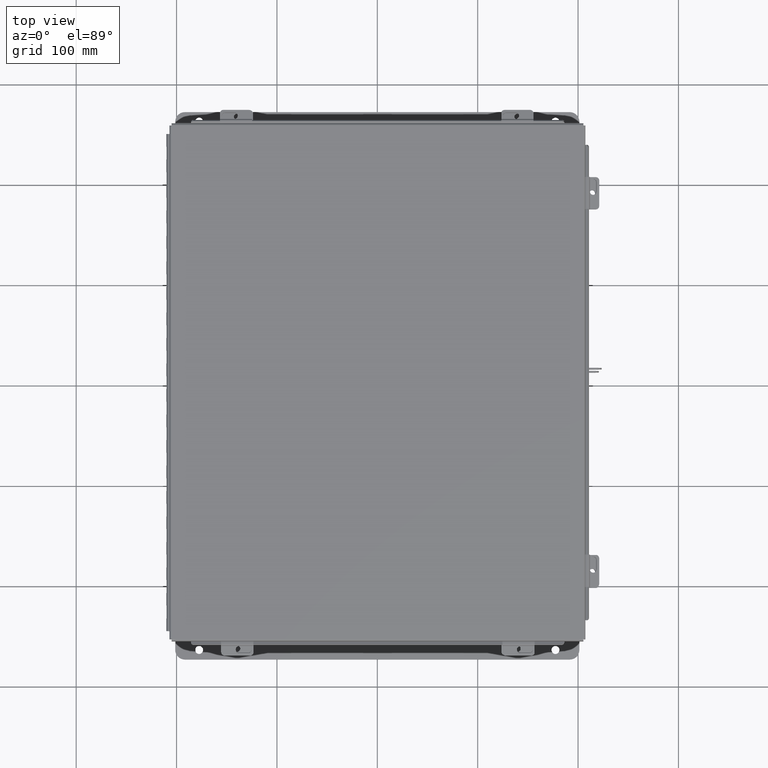
[diagram: clean part render]
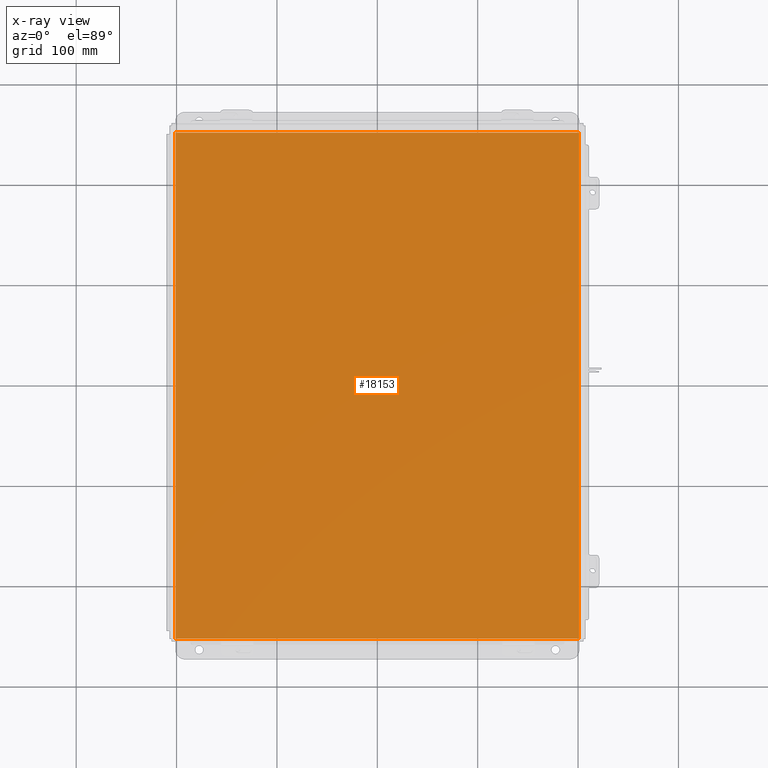
[diagram: x-ray — body ghosted, one internal face saturated and labeled with its STEP entity id]
A machine part, top view, then the same camera in x-ray: the body is ghosted and one INTERNAL B-rep face — a face not visible from any outside direction — is saturated and labeled: STEP entity #18153.
In plain terms, the highlighted planar face has unit normal (0, 0, -1).
Its self-contained STEP definition (entity closure, byte-faithful):
#247 = VERTEX_POINT ( 'NONE', #14340 ) ;
#1112 = VERTEX_POINT ( 'NONE', #9008 ) ;
#1941 = CARTESIAN_POINT ( 'NONE',  ( -7.999999999999996400, -9.925299999999998200, 0.0000000000000000000 ) ) ;
#2036 = CARTESIAN_POINT ( 'NONE',  ( -7.999999999999996400, 9.925299999999998200, 0.0000000000000000000 ) ) ;
#2322 = VECTOR ( 'NONE', #21362, 39.37007874015748100 ) ;
#2579 = DIRECTION ( 'NONE',  ( -1.000000000000000000, 0.0000000000000000000, -0.0000000000000000000 ) ) ;
#4944 = FACE_OUTER_BOUND ( 'NONE', #6445, .T. ) ;
#5704 = CARTESIAN_POINT ( 'NONE',  ( 7.912300000000002800, 9.925299999999996500, 4.268512490100411300E-017 ) ) ;
#5998 = VECTOR ( 'NONE', #13963, 39.37007874015748100 ) ;
#6445 = EDGE_LOOP ( 'NONE', ( #9584, #6612, #9153, #16249 ) ) ;
#6612 = ORIENTED_EDGE ( 'NONE', *, *, #7740, .T. ) ;
#7730 = CARTESIAN_POINT ( 'NONE',  ( -7.912299999999996600, -9.925299999999998200, 4.268512490100411300E-017 ) ) ;
#7740 = EDGE_CURVE ( 'NONE', #10374, #1112, #20404, .T. ) ;
#7871 = DIRECTION ( 'NONE',  ( -0.0000000000000000000, 1.000000000000000000, -0.0000000000000000000 ) ) ;
#7913 = CARTESIAN_POINT ( 'NONE',  ( 7.912300000000002800, -9.925300000000000000, 4.268512490100411300E-017 ) ) ;
#9008 = CARTESIAN_POINT ( 'NONE',  ( -7.912299999999996600, 9.925299999999998200, 4.268512490100411300E-017 ) ) ;
#9153 = ORIENTED_EDGE ( 'NONE', *, *, #13469, .F. ) ;
#9584 = ORIENTED_EDGE ( 'NONE', *, *, #17611, .F. ) ;
#9688 = CARTESIAN_POINT ( 'NONE',  ( 7.912300000000002800, 9.925299999999992900, 4.268512490100411300E-017 ) ) ;
#10374 = VERTEX_POINT ( 'NONE', #9688 ) ;
#11416 = LINE ( 'NONE', #5704, #2322 ) ;
#11533 = LINE ( 'NONE', #7730, #20255 ) ;
#12835 = DIRECTION ( 'NONE',  ( 0.0000000000000000000, 0.0000000000000000000, -1.000000000000000000 ) ) ;
#13469 = EDGE_CURVE ( 'NONE', #247, #1112, #11533, .T. ) ;
#13877 = DIRECTION ( 'NONE',  ( -1.000000000000000000, -0.0000000000000000000, -0.0000000000000000000 ) ) ;
#13963 = DIRECTION ( 'NONE',  ( 1.000000000000000000, -1.365923996832131600E-016, 0.0000000000000000000 ) ) ;
#14340 = CARTESIAN_POINT ( 'NONE',  ( -7.912299999999996600, -9.925299999999996500, 4.268512490100411300E-017 ) ) ;
#16249 = ORIENTED_EDGE ( 'NONE', *, *, #17492, .T. ) ;
#16259 = CARTESIAN_POINT ( 'NONE',  ( 0.0000000000000000000, 0.0000000000000000000, 0.0000000000000000000 ) ) ;
#16833 = VECTOR ( 'NONE', #13877, 39.37007874015748100 ) ;
#17492 = EDGE_CURVE ( 'NONE', #247, #18278, #19861, .T. ) ;
#17611 = EDGE_CURVE ( 'NONE', #10374, #18278, #11416, .T. ) ;
#18153 = ADVANCED_FACE ( 'NONE', ( #4944 ), #19764, .F. ) ;
#18278 = VERTEX_POINT ( 'NONE', #7913 ) ;
#19764 = PLANE ( 'NONE',  #20224 ) ;
#19861 = LINE ( 'NONE', #1941, #5998 ) ;
#20224 = AXIS2_PLACEMENT_3D ( 'NONE', #16259, #12835, #2579 ) ;
#20255 = VECTOR ( 'NONE', #7871, 39.37007874015748100 ) ;
#20404 = LINE ( 'NONE', #2036, #16833 ) ;
#21362 = DIRECTION ( 'NONE',  ( -0.0000000000000000000, -1.000000000000000000, -0.0000000000000000000 ) ) ;